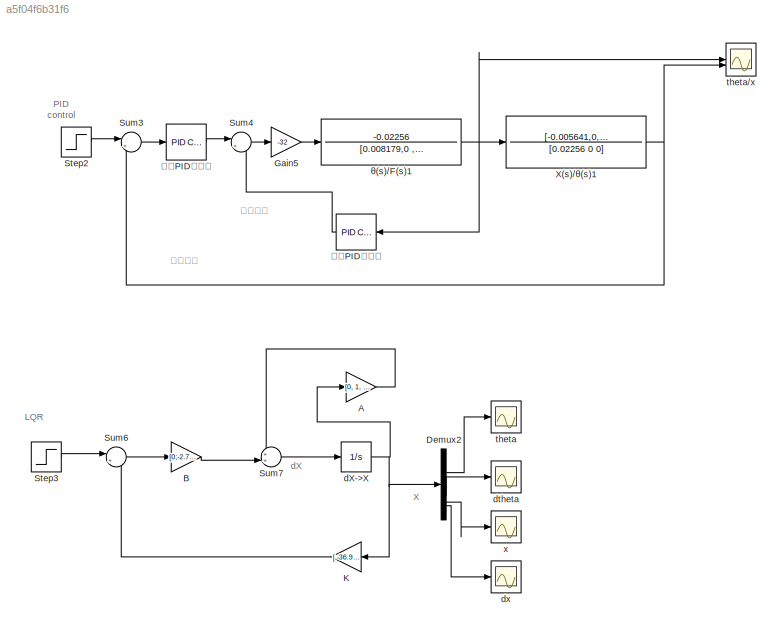
MODEL slx_a5f04f6b31f6
KIND model
CONFIG AbsTol = auto
CONFIG EnableMultiTasking = off
CONFIG FixedStep = auto
CONFIG MaxStep = auto
CONFIG MinStep = auto
CONFIG RelTol = 1e-3
CONFIG SampleTimeConstraint = Unconstrained
CONFIG SolverName = VariableStepAuto
CONFIG StartTime = 0.0
CONFIG StopTime = 30
BLOCK [Gain] A
  Gain = [0, 1, 0, 0;\n     41.63, 0, 0, 0;\n     0, 0, 0, 1;\n     -0.6099, 0, 0, 0];
  Multiplication = Matrix(K*u)
BLOCK [Gain] B
  Gain = [0;-2.7584;0;0.6898]
  Multiplication = Matrix(K*u)
BLOCK [Demux] Demux2
BLOCK [Gain] Gain5
  Gain = -32
BLOCK [Gain] K
  Gain = [ -36.9690   -5.8463   -1.0000   -2.3376]
  Multiplication = Matrix(K*u)
  NameLocation = top
BLOCK [Step] Step2
  SampleTime = 0
BLOCK [Step] Step3
  SampleTime = 0
BLOCK [Sum] Sum3
  Inputs = |+-
BLOCK [Sum] Sum4
  Inputs = |+-
BLOCK [Sum] Sum6
  Inputs = |+-
BLOCK [Sum] Sum7
  Inputs = ++|
BLOCK [TransferFcn] X(s)//θ(s)1
  Denominator = [0.02256 0 0]
  Numerator = [-0.005641,0,0.2211]
BLOCK [Integrator] dX->X
BLOCK [Scope] dtheta
  Floating = off
  NumInputPorts = 1
  ScopeSpecificationString = Simulink.scopes.TimeScopeBlockCfg('CurrentConfiguration', extmgr.ConfigurationSet(extmgr.Configuration('Core','General UI',true),extmgr.Configuration('Core','Source UI',true),extmgr.Configuration('Sources','WiredSimulink',true,'DataLoggingVariableName','ScopeData2'),extmgr.Configuration('Visuals','Time Domain',true,'SerializedDisplays',{struct('MinYLimReal','-0.15803','MaxYLimReal','0.06371','YLab...<+1485ch>
BLOCK [Scope] dx
  Floating = off
  NumInputPorts = 1
  ScopeSpecificationString = Simulink.scopes.TimeScopeBlockCfg('CurrentConfiguration', extmgr.ConfigurationSet(extmgr.Configuration('Core','General UI',true),extmgr.Configuration('Core','Source UI',true),extmgr.Configuration('Sources','WiredSimulink',true,'DataLoggingVariableName','ScopeData4'),extmgr.Configuration('Visuals','Time Domain',true,'SerializedDisplays',{struct('MinYLimReal','-0.38273','MaxYLimReal','0.07552','YLab...<+1485ch>
BLOCK [Scope] theta
  Floating = off
  NumInputPorts = 1
  ScopeSpecificationString = Simulink.scopes.TimeScopeBlockCfg('CurrentConfiguration', extmgr.ConfigurationSet(extmgr.Configuration('Core','General UI',true),extmgr.Configuration('Core','Source UI',true),extmgr.Configuration('Sources','WiredSimulink',true,'DataLoggingVariableName','ScopeData1'),extmgr.Configuration('Visuals','Time Domain',true,'SerializedDisplays',{struct('MinYLimReal','-0.04388','MaxYLimReal','0.01756','YLab...<+1485ch>
BLOCK [Scope] theta//x
  Floating = off
  NumInputPorts = 2
  ScopeSpecificationString = Simulink.scopes.TimeScopeBlockCfg('CurrentConfiguration', extmgr.ConfigurationSet(extmgr.Configuration('Core','General UI',true),extmgr.Configuration('Core','Source UI',true),extmgr.Configuration('Sources','WiredSimulink',true),extmgr.Configuration('Visuals','Time Domain',true,'SerializedDisplays',{struct('MinYLimReal','-0.20108','MaxYLimReal','1.41453','YLabelReal','','MinYLimMag','0.00000','MaxY...<+1461ch>
BLOCK [Scope] x
  Floating = off
  NumInputPorts = 1
  ScopeSpecificationString = Simulink.scopes.TimeScopeBlockCfg('CurrentConfiguration', extmgr.ConfigurationSet(extmgr.Configuration('Core','General UI',true),extmgr.Configuration('Core','Source UI',true),extmgr.Configuration('Sources','WiredSimulink',true,'DataLoggingVariableName','ScopeData3'),extmgr.Configuration('Visuals','Time Domain',true,'SerializedDisplays',{struct('MinYLimReal','-1.13941','MaxYLimReal','0.1317','YLabe...<+1483ch>
BLOCK [TransferFcn] θ(s)//F(s)1
  Denominator = [0.008179,0 ,- 0.3405]
  Numerator = -0.02256
BLOCK [Reference] 内环PID控制器  REF=slpidlib/PID Controller
  SourceBlock = slpidlib/PID Controller
  SourceType = PID 1dof
BLOCK [Reference] 外环PID控制器   REF=slpidlib/PID Controller
  SourceBlock = slpidlib/PID Controller
  SourceType = PID 1dof
ANNOTATION (root): LQR
ANNOTATION (root): PID control
ANNOTATION (root): 位置反馈
ANNOTATION (root): 角度反馈
ANNOTATION (root): X
ANNOTATION (root): dX
LINE A:1 -> Sum7:1
LINE B:1 -> Sum7:2
LINE Demux2:1 -> theta:1
LINE Demux2:2 -> dtheta:1
LINE Demux2:3 -> x:1
LINE Demux2:4 -> dx:1
LINE Gain5:1 -> θ(s)//F(s)1:1
LINE K:1 -> Sum6:2
LINE Step2:1 -> Sum3:1
LINE Step3:1 -> Sum6:1
LINE Sum3:1 -> 外环PID控制器 :1
LINE Sum4:1 -> Gain5:1
LINE Sum6:1 -> B:1
LINE Sum7:1 -> dX->X:1
NET X(s)//θ(s)1:1 -> Sum3:2, theta//x:2
NET dX->X:1 -> A:1, Demux2:1, K:1
NET θ(s)//F(s)1:1 -> X(s)//θ(s)1:1, theta//x:1, 内环PID控制器:1
LINE 内环PID控制器:1 -> Sum4:2
LINE 外环PID控制器 :1 -> Sum4:1
note: NET lines group one-source signal fan-out (src -> all destinations, sorted); 1:1 wires keep LINE
